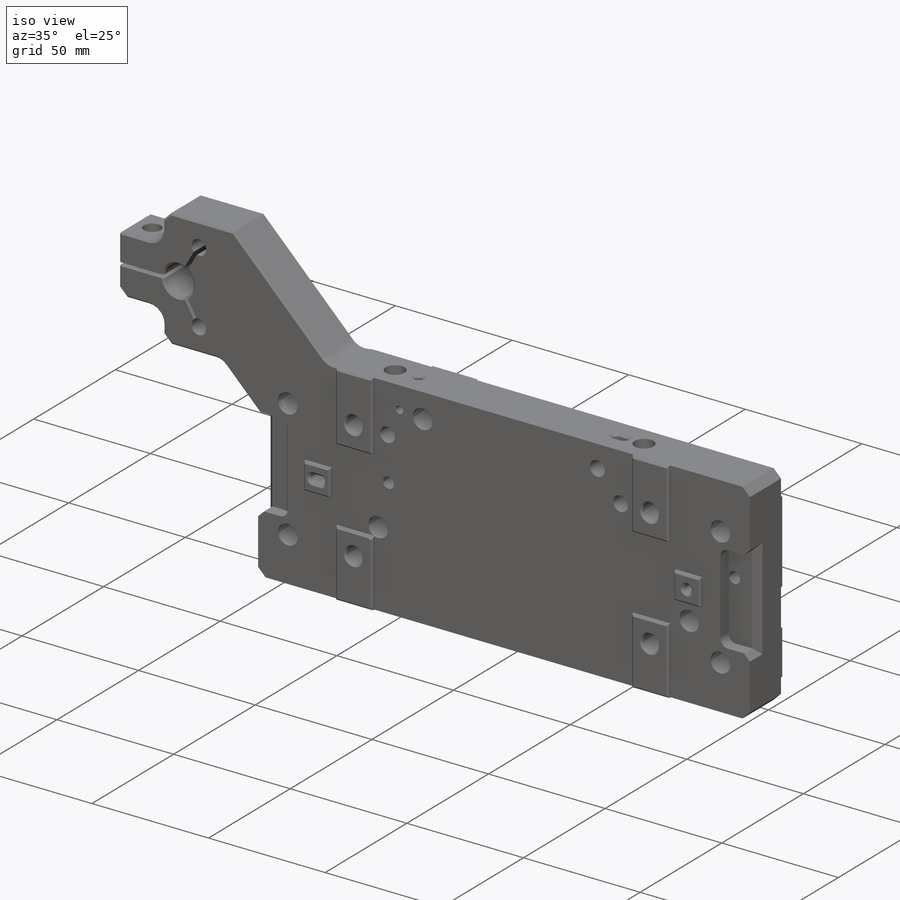
[diagram: iso view]
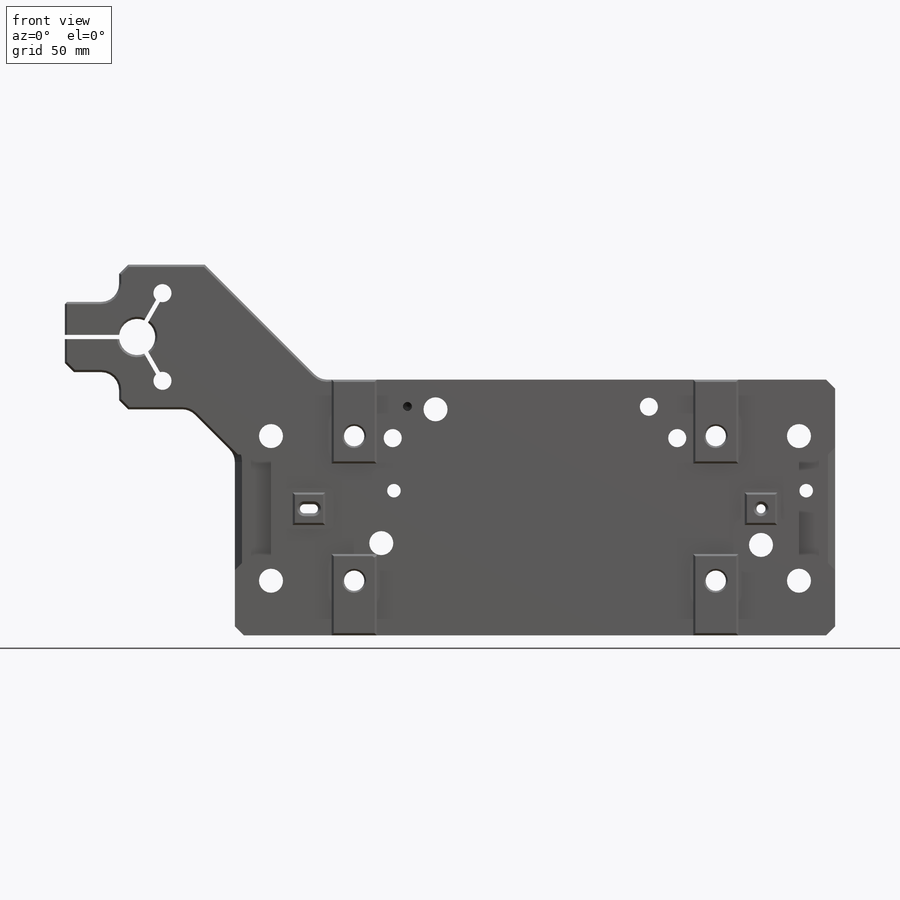
[diagram: front view]
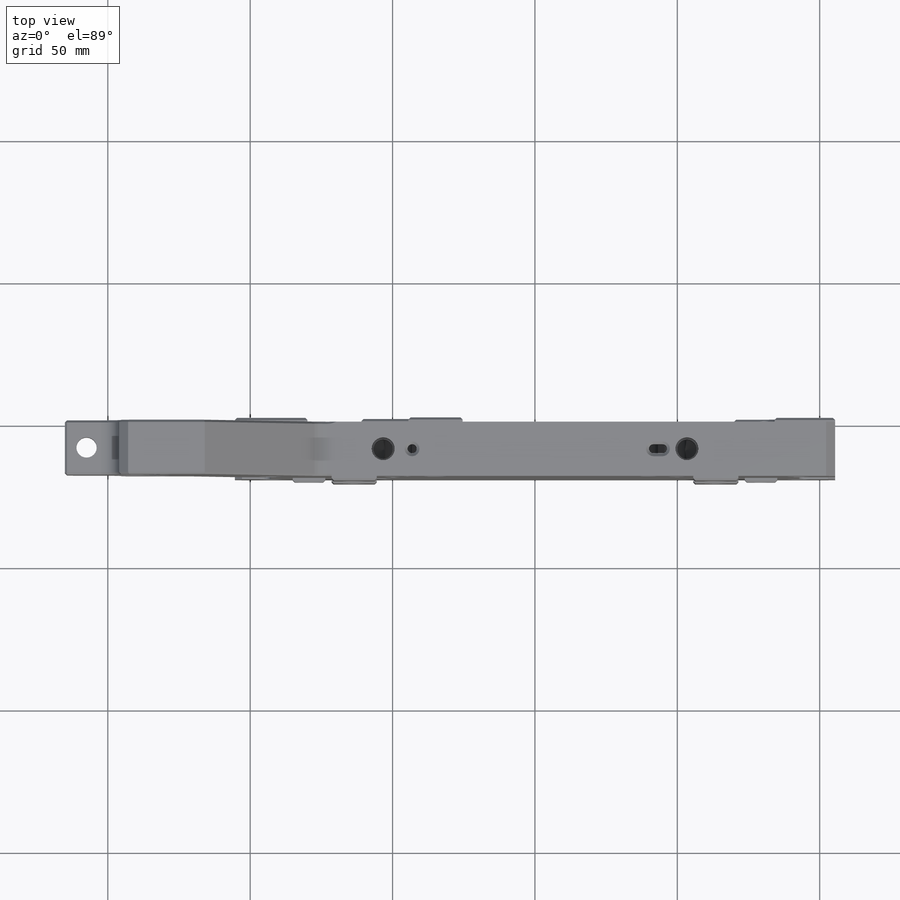
[diagram: top view]
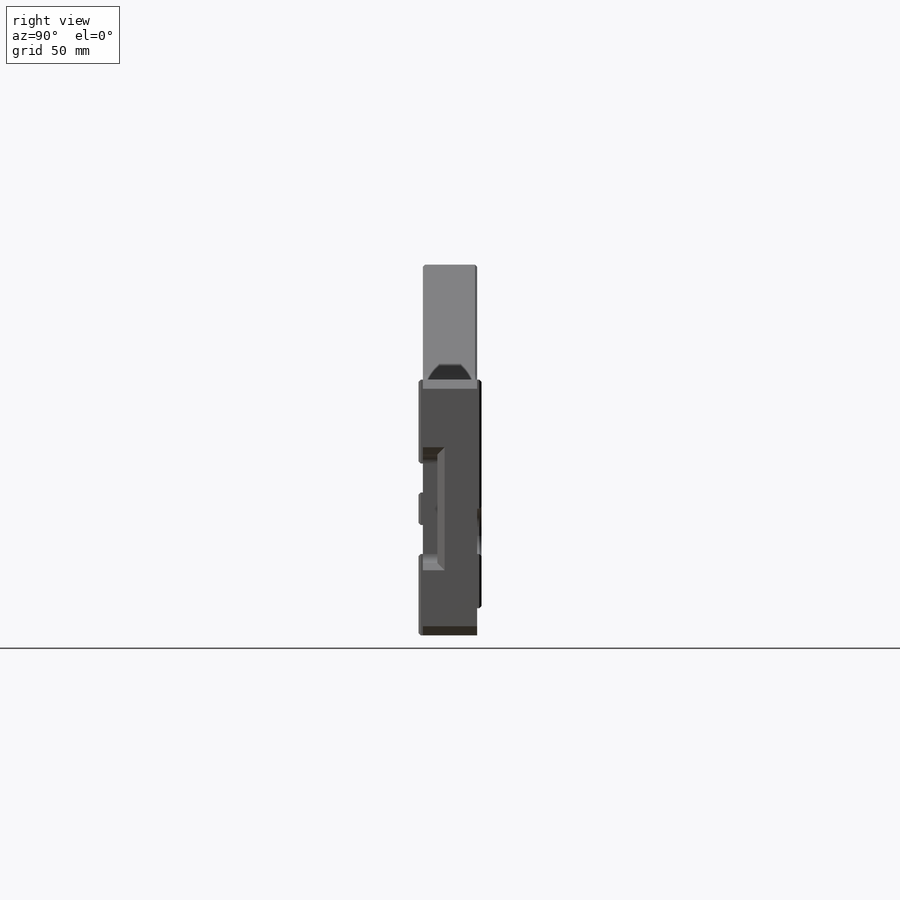
[diagram: right view]
SOLIDWORKS PART (.sldprt)
format: sldprt  version: not decoded by parser v0  size: 2,615,296 bytes
history: native  units: mm
features: sketch x34, hole x11, chamfer x7, extrude x6, cut_extrude x6, fillet x3, material x1, mirror x1 + 1 further entry (+13 scaffold rows collapsed)
feature tree (83):
  scaffold x13  (default folders/planes/origin — collapsed)
  material  "6061-T6 Al"
  "Origin"  ID=-1
  sketch  "Sketch1"  dims[c1.D1=~93.978568mm c1.D2=~156.630947mm c2.D1=177.8mm c2.D2=120.65mm]
  extrude  "Extrude1"  Depth=19.05mm
  sketch  "Sketch4"  dims[c1.D1=15.875mm c1.D2=31.75mm c1.D3=13.6525mm c1.D4=28.575mm c1.D5=29.464mm c1.D6=11.43mm c1.D7=11.43mm c1.D8=15.875mm c2.D3=55.5625mm c2.D7=73.66mm c2.D9=11.43mm]
  extrude  "Pads, Magnet Assem Side, X6"  Depth=1.524mm
  sketch  "Sketch8"  dims[c1.D1=~6.35508mm c1.D10=6.35mm c2.D1=12.7mm c2.D2=16.51mm c2.D3=63.5mm c2.D4=9.525mm c2.D5=~14.865771mm c2.D6=~15.994817mm c3.D5=~13.548551mm c3.D6=~16.371166mm c4.D5=19.05mm c4.D6=19.05mm c4.D7=19.05mm c4.D8=19.05mm c4.D9=19.939mm c4.D10=42.8625mm c4.D11=76.2mm c5.D10=28.575mm c5.D11=69.85mm c5.D12=19.05mm c5.D13=~19.253401mm c6.D12=19.05mm c6.D13=41.91mm c6.D14=12.7mm c6.D2=21.2725mm c6.D3=12.7mm c7.D14=84.1375mm c7.D15=38.1mm c7.D16=2.54mm c7.D8=19.05mm c7.D10=19.05mm c7.D17=19.05mm c7.D18=~18.581324mm c8.D17=19.05mm c8.D18=63.5mm c8.D19=19.05mm c8.D20=12.7mm c9.D17=25.4mm c9.D18=12.7mm c9.D10=6.35mm]
  extrude  "Pads Stage1 Side, 4X"  Depth=1.524mm
  hole  "CBORE, 1/4 Hole, large, Magnet Attach"  Diameter=7.14248mm Depth=22.098mm
  sketch  "Sketch6"  dims[c1.D1=21.59mm c1.D2=50.8mm c2.D1=63.5mm c2.D3=9.652mm]
  sketch  "Sketch5"  dims[hole-wizard template sketch: 42 standard entries collapsed; hole parameters kept: c12.Thru Hole Depth=22.098mm c12.C'Bore Dia.=12.7mm c12.C'Bore Depth=8.382mm c12.Mid C'Sink Dia.=8.4074mm c12.D6=~5.388154mm c12.Mid C'Sink Angle=82.0deg c12.Far C'Sink Dia.=~8.41248mm c12.D8=~2.963249mm c12.Far C'Sink Angle=82.0deg c12.D9=~4.399409mm]
  mirror  "Mirror, Magnet Pads & CBORE"
  sketch  "Sketch7"  dims[D1=~5.664194mm D2=15.875mm D3=158.75mm D4=79.375mm D5=3.175mm]
  cut_extrude  "Pin Hole & Slot .1252", Magnet Side"  Depth=9.525mm
  sketch  "Sketch12"  dims[c1.D5=3.175mm c1.D6=6.35mm c1.D11=6.35mm c1.D12=6.35mm c1.D13=3.175mm c1.D1=31.75mm c1.D2=0.127mm c1.D3=88.9mm c1.D4=25.4mm c2.D5=25.4mm c2.D1=50.8mm c2.D3=9.525mm c2.D4=76.2mm c2.D7=1.524mm c2.D8=1.524mm c2.D9=1.524mm c2.D10=24.638mm c2.D11=25.4mm c2.D12=~25.388039mm c2.D13=~10.002068mm c2.D14=~19.083925mm c3.D14=120.0deg c3.D15=~19.083925mm c4.D15=120.0deg c4.D14=17.78mm c5.D15=17.78mm c5.D16=~19.083925mm c6.D16=120.0deg c6.D17=0.762mm]
  extrude  "Sensor Targent Clamp Extrude"  [1 undecoded]
  hole  "1/4 Clearance Hole, Sensor mount"  Diameter=7.14248mm Depth=24.638mm
  sketch  "Sketch14"  dims[c1.D1=71.12mm c1.D2=35.56mm c2.D1=7.62mm c2.D2=9.525mm]
  sketch  "Sketch13"  dims[hole-wizard template sketch: 47 standard entries collapsed; hole parameters kept: c15.Hole Depth=24.638mm c15.D3=~14.816244mm c15.Drill Angle=118.0deg]
  hole  "1/4 Clearance Hole, Vent, Magnet pins"  Diameter=6.35mm Depth=13.97mm
  sketch  "Sketch20"
  sketch  "Sketch19"  dims[hole-wizard template sketch: 47 standard entries collapsed; hole parameters kept: c15.Hole Depth=13.97mm c15.D3=~14.816244mm c15.Drill Angle=118.0deg]
  hole  "Tapped Hole for 1/4-20 Helicoil4"  Diameter=6.7564mm Depth=104.013025mm
  sketch  "Sketch22"
  sketch  "Sketch21"  dims[hole-wizard template sketch: 42 standard entries collapsed; hole parameters kept: c12.Thru Tap Drill Depth=~104.013025mm c12.Thread Major Dia.=~8.09498mm c12.Thread Depth=11.6586mm]
  sketch  "Sketch23"  dims[D1=13.081mm D2=19.05mm D3=~40.53415mm]
  cut_extrude  "Extrude Cuts, Sensor mount"  Depth=50.8mm
  sketch  "Sketch24"  dims[c1.D1=~76.269834mm c1.D2=16.51mm c2.D1=~13.820832mm c2.D2=~6.90342mm c3.D1=~131.753135mm c3.D2=16.51mm c4.D1=16.51mm c4.D2=16.51mm]
  extrude  "Extrude4"  [1 undecoded]
  sketch  "Sketch27"  dims[c1.D1=~21.554289mm c1.D2=~25.261462mm c2.D1=~27.553937mm c2.D2=~25.261462mm c3.D1=~19.396269mm c3.D2=~20.887662mm c4.D1=~19.776616mm c4.D2=~23.790264mm c5.D1=19.05mm c5.D2=25.527mm c5.D3=19.05mm c5.D4=31.75mm c5.D5=50.8mm c5.D6=25.527mm c5.D7=~8.866748mm c6.D7=~129.083355deg c7.D7=~6.882632mm c8.D7=45.0deg c8.D8=10.16mm c8.D1=79.375mm]
  extrude  "Pads, Stage1 Side, 3X"  [1 undecoded]
  fillet  "Fillet3"  Radius=6.35mm
  hole  "5/16-18 Helicoil, Stage1, Horizontal, 4 of 4"  Diameter=8.4328mm Depth=22.098mm
  sketch  "Sketch11"  dims[c1.D1=9.2075mm c1.D2=92.075mm c1.D3=46.0375mm c1.D4=41.275mm c2.D2=~2.466078mm c2.D1=9.525mm c3.D2=25.4mm c3.D3=19.05mm c3.D4=82.55mm c3.D5=41.275mm c4.D4=34.925mm c4.D1=79.375mm c4.D5=28.575mm c4.D2=27.94mm c4.D6=53.975mm c4.D7=9.652mm c4.D8=92.71mm]
  sketch  "Sketch10"  dims[hole-wizard template sketch: 41 standard entries collapsed; hole parameters kept: c12.Thru Tap Drill Dia.=8.4328mm c12.Thru Tap Drill Depth=22.098mm c12.Thread Major Dia.=~9.86536mm c12.Thread Depth=19.2532mm c12.Near C'Sink Dia.=~11.13536mm c12.D6=~4.399409mm c12.Near C'Sink Angle=90.0deg c12.Far C'Sink Dia.=~11.13536mm c12.D8=~2.963249mm c12.Far C'Sink Angle=90.0deg]
  hole  "5/16-18 Helicoil, Stage1, Vertical, 3 0f 4"  Diameter=8.4328mm Depth=22.098mm
  sketch  "Sketch26"  dims[c1.D1=50.8mm c1.D2=185.42mm c1.D3=92.71mm c1.D4=41.148mm c2.D1=29.21mm]
  sketch  "Sketch25"  dims[hole-wizard template sketch: 41 standard entries collapsed; hole parameters kept: c12.Thru Tap Drill Dia.=8.4328mm c12.Thru Tap Drill Depth=22.098mm c12.Thread Major Dia.=~9.86536mm c12.Thread Depth=19.2532mm c12.Near C'Sink Dia.=~11.13536mm c12.D6=~4.399409mm c12.Near C'Sink Angle=90.0deg c12.Far C'Sink Dia.=~11.13536mm c12.D8=~2.963249mm c12.Far C'Sink Angle=90.0deg]
  sketch  "Sketch30"  dims[c1.D1=~26.707332mm c1.D2=~190.807292mm c2.D1=30.861mm c2.D2=180.975mm c2.D3=19.05mm c2.D4=25.4mm]
  cut_extrude  "Extrude Cut, Top Side"  [1 undecoded]
  hole  "Tapped Hole for 1/4-20 Helicoil1"  Diameter=6.7564mm Depth=20.5232mm
  sketch  "Sketch3"  dims[c1.D1=76.2mm c1.D2=12.7mm c1.D3=34.925mm c2.D2=47.498mm c2.D4=106.68mm c2.D5=53.34mm c2.D1=9.525mm]
  sketch  "Sketch2"  dims[hole-wizard template sketch: 28 standard entries collapsed; hole parameters kept: c8.Tap Drill Dia.=6.7564mm c8.Tap Drill Depth=20.5232mm c8.Thread Major Dia.=~8.09498mm c8.Thread Depth=11.684mm c8.D5=~14.816244mm c8.Drill Angle=118.0deg]
  sketch  "Sketch31"  dims[c1.D1=38.1mm c1.D2=19.05mm c2.D2=45.0deg]
  cut_extrude  "Extrude, 45deg Cut, Sensor Mount"  [1 undecoded]
  chamfer  "Chamfer3"  Distance=3.175mm Angle=45deg
  chamfer  "Chamfer5"  Distance=15.875mm Angle=45deg
  fillet  "Fillet1"  Radius=6.35mm
  sketch  "Sketch32"  dims[c1.D1=~2.990309mm c1.D2=~3.19024mm c1.D4=~3.18262mm c2.D1=3.175mm c2.D3=86.36mm c2.D4=43.18mm]
  cut_extrude  "Extrude9"  Depth=9.525mm
  hole  "1/4 (0.25) Diameter Hole1"  Diameter=6.35mm Depth=20.574025mm
  sketch  "Sketch34"
  sketch  "Sketch33"  dims[hole-wizard template sketch: 60 standard entries collapsed; hole parameters kept: c18.Thru Hole Depth=~20.574025mm]
  sketch  "Sketch35"  dims[c1.D1=~25.492678mm c1.D2=~12.535491mm c2.D1=~28.953485mm c2.D2=~15.654836mm c3.D1=12.7mm c3.D2=12.7mm c3.D3=31.75mm c3.D4=38.1mm c3.D5=19.05mm c4.D3=15.875mm]
  cut_extrude  "Extrude10"  Depth=5.08mm
  hole  "1/8 (0.125) Diameter Hole1"  Diameter=3.175mm Depth=11.176mm
  sketch  "Sketch37"
  sketch  "Sketch38"  dims[hole-wizard template sketch: 47 standard entries collapsed; hole parameters kept: c15.Hole Depth=11.176mm c15.D3=~14.816244mm c15.Drill Angle=118.0deg]
  hole  "CBORE for 1/4 Socket Head Cap Screw1"  Diameter=6.35mm Depth=9.652mm
  sketch  "Sketch41"  dims[D1=10.16mm D2=154.94mm D3=50.8mm]
  sketch  "Sketch40"  dims[hole-wizard template sketch: 26 standard entries collapsed; hole parameters kept: c8.Hole Dia.=6.35mm c8.Hole Depth=9.652mm c8.C'Bore Dia.=6.3754mm c8.C'Bore Depth=2.54mm c8.Near C'Sink Dia.=7.112mm c8.D6=~4.399409mm c8.Near C'Sink Angle=90.0deg c8.D7=~14.816244mm c8.Drill Angle=118.0deg]
  hole  "1/4 (0.25) Diameter Hole2"  Diameter=4.7498mm Depth=20.574mm
  sketch  "Sketch43"
  sketch  "Sketch42"  dims[hole-wizard template sketch: 54 standard entries collapsed; hole parameters kept: c17.Thru Hole Dia.=4.7498mm c17.Thru Hole Depth=20.574mm c17.Near C'Sink Dia.=7.3406mm c17.D4=~3.666174mm c17.Near C'Sink Angle=90.0deg]
  fillet  "Fillet4"  Radius=3.175mm
  chamfer  "Chamfer8"  Distance=2.54mm Angle=45deg
  chamfer  "Chamfer6"  Distance=0.762mm Angle=45deg
  chamfer  "Chamfer, Pin Hole & Slot, Magnet Side"  Distance=1.016mm Angle=45deg
  chamfer  "Chamfer7"  Distance=0.762mm Angle=45deg
  chamfer  "Chamfer9"  Distance=1.016mm Angle=45deg
decode coverage: 57 of 68 modeling features carry decoded parameters; 1 rows unclassified (native names shown)
note: ~ marks probable driven/reference dimensions
note: 5 parameter values undecoded
summary: Diameter pulled from absorbed wizard sketch | no parameter record found for 5 features
note: suppression state not decoded; provenance and decode notes live in map.json
